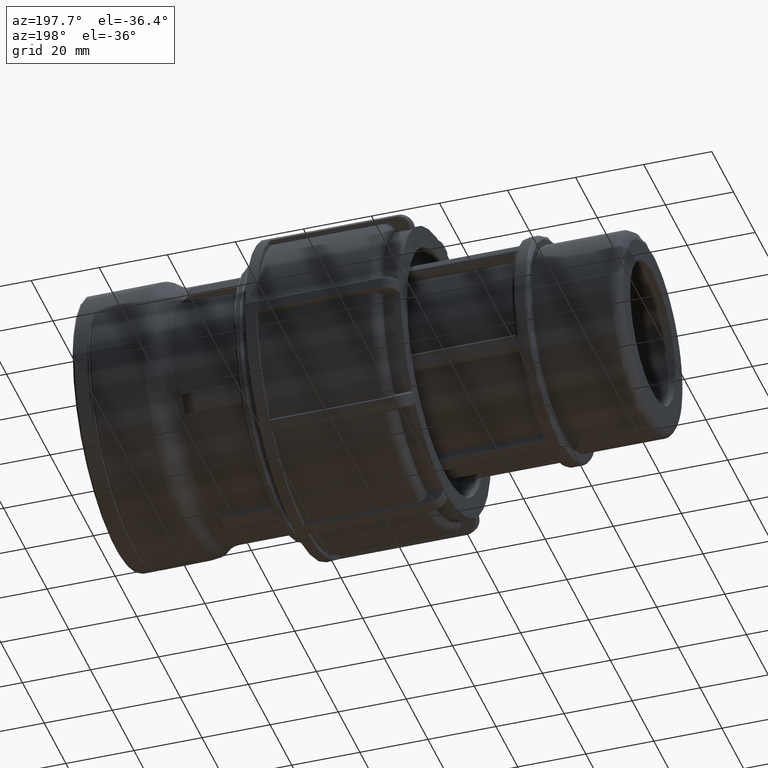
[diagram: clean part render]
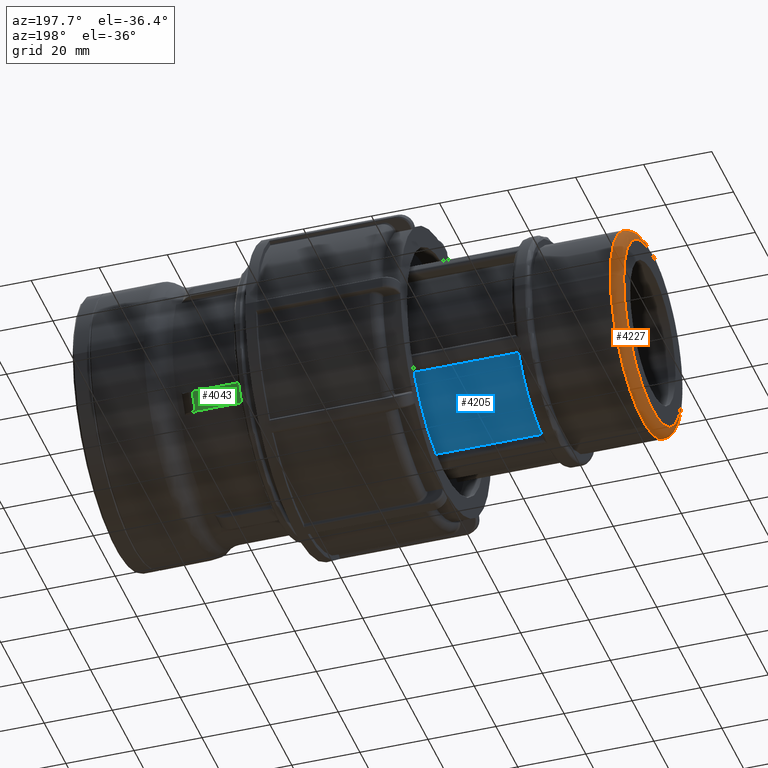
[diagram: same view with three faces highlighted in distinct colors, each labeled with its STEP entity id]
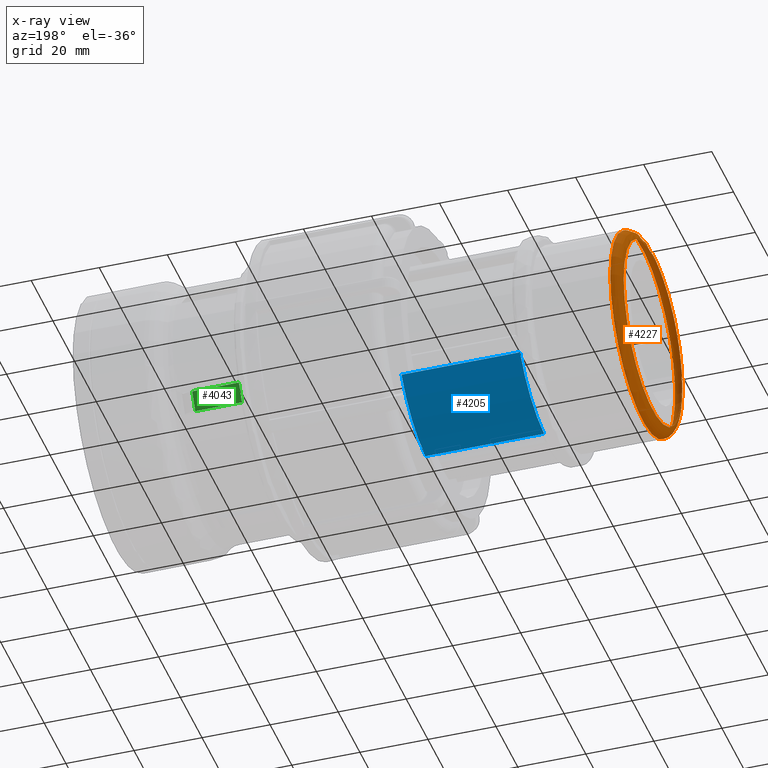
[diagram: x-ray of the same camera — body ghosted, the three highlighted faces saturated]
A machine part, auxiliary view with three faces highlighted in distinct colors.
The next image is the same camera in x-ray (body ghosted, the three faces saturated) — at least one of them is partly hidden behind the body in this view.
Their STEP definitions:

[orange] entity #4227 — the highlighted toroidal blend (fillet) surface has major radius 26.8263 mm and minor (blend) radius 2.9807 mm.
#70=FACE_BOUND('',#1248,.T.);
#984=FACE_OUTER_BOUND('',#1247,.T.);
#1247=EDGE_LOOP('',(#3940));
#1248=EDGE_LOOP('',(#3941));
#1645=CIRCLE('',#4666,26.8263);
#1646=CIRCLE('',#4667,29.807);
#2064=VERTEX_POINT('',#8916);
#2065=VERTEX_POINT('',#8918);
#2695=EDGE_CURVE('',#2064,#2064,#1645,.T.);
#2696=EDGE_CURVE('',#2065,#2065,#1646,.T.);
#3940=ORIENTED_EDGE('',*,*,#2695,.T.);
#3941=ORIENTED_EDGE('',*,*,#2696,.T.);
#3994=TOROIDAL_SURFACE('',#4665,26.8263,2.9807);
#4227=ADVANCED_FACE('',(#984,#70),#3994,.T.);
#4665=AXIS2_PLACEMENT_3D('',#8915,#5782,#5783);
#4666=AXIS2_PLACEMENT_3D('',#8917,#5784,#5785);
#4667=AXIS2_PLACEMENT_3D('',#8919,#5786,#5787);
#5782=DIRECTION('center_axis',(1.,0.,0.));
#5783=DIRECTION('ref_axis',(0.,0.,-1.));
#5784=DIRECTION('center_axis',(1.,0.,0.));
#5785=DIRECTION('ref_axis',(0.,-1.,1.83697019872103E-16));
#5786=DIRECTION('center_axis',(-1.,0.,0.));
#5787=DIRECTION('ref_axis',(0.,-1.,1.83697019872103E-16));
#8915=CARTESIAN_POINT('Origin',(-155.0193,0.,0.));
#8916=CARTESIAN_POINT('',(-158.,26.8263,-1.64263712139833E-15));
#8917=CARTESIAN_POINT('Origin',(-158.,0.,0.));
#8918=CARTESIAN_POINT('',(-155.0193,29.807,-9.12576178554629E-15));
#8919=CARTESIAN_POINT('Origin',(-155.0193,0.,0.));

[blue] entity #4205 — the highlighted cylindrical surface (partial cylindrical patch) has radius 29.807 mm, axis along (1, 0, 0).
#178=LINE('',#6092,#425);
#383=LINE('',#8848,#630);
#425=VECTOR('',#4799,34.83);
#630=VECTOR('',#5676,34.83);
#739=CYLINDRICAL_SURFACE('',#4635,29.807);
#962=FACE_OUTER_BOUND('',#1223,.T.);
#1223=EDGE_LOOP('',(#3848,#3849,#3850,#3851));
#1632=CIRCLE('',#4626,29.807);
#1637=CIRCLE('',#4636,29.807);
#1707=VERTEX_POINT('',#6089);
#1708=VERTEX_POINT('',#6091);
#2054=VERTEX_POINT('',#8845);
#2055=VERTEX_POINT('',#8847);
#2141=EDGE_CURVE('',#1708,#1707,#178,.T.);
#2665=EDGE_CURVE('',#2055,#2054,#383,.T.);
#2679=EDGE_CURVE('',#2055,#1707,#1632,.T.);
#2685=EDGE_CURVE('',#2054,#1708,#1637,.T.);
#3848=ORIENTED_EDGE('',*,*,#2141,.T.);
#3849=ORIENTED_EDGE('',*,*,#2679,.F.);
#3850=ORIENTED_EDGE('',*,*,#2665,.T.);
#3851=ORIENTED_EDGE('',*,*,#2685,.T.);
#4205=ADVANCED_FACE('',(#962),#739,.T.);
#4626=AXIS2_PLACEMENT_3D('',#8871,#5701,#5702);
#4635=AXIS2_PLACEMENT_3D('',#8882,#5720,#5721);
#4636=AXIS2_PLACEMENT_3D('',#8883,#5722,#5723);
#4799=DIRECTION('',(1.,0.,0.));
#5676=DIRECTION('',(-1.,0.,0.));
#5701=DIRECTION('center_axis',(1.,0.,0.));
#5702=DIRECTION('ref_axis',(0.,0.,-1.));
#5720=DIRECTION('center_axis',(1.,0.,0.));
#5721=DIRECTION('ref_axis',(0.,1.,0.));
#5722=DIRECTION('center_axis',(1.,0.,0.));
#5723=DIRECTION('ref_axis',(0.,0.,-1.));
#6089=CARTESIAN_POINT('',(-91.97,24.5386030387688,-16.9208217857682));
#6091=CARTESIAN_POINT('',(-126.8,24.5386030387688,-16.9208217857682));
#6092=CARTESIAN_POINT('',(-109.385,24.5386030387688,-16.9208217857682));
#8845=CARTESIAN_POINT('',(-126.8,2.38456,-29.7114644978399));
#8847=CARTESIAN_POINT('',(-91.97,2.38456,-29.7114644978399));
#8848=CARTESIAN_POINT('',(-109.385,2.38456,-29.7114644978399));
#8871=CARTESIAN_POINT('Origin',(-91.97,0.,0.));
#8882=CARTESIAN_POINT('Origin',(-109.385,0.,0.));
#8883=CARTESIAN_POINT('Origin',(-126.8,0.,0.));

[green] entity #4043 — the highlighted planar face has unit normal (0, 0.866, -0.5).
#95=PLANE('',#4348);
#196=LINE('',#6248,#443);
#238=LINE('',#6568,#485);
#239=LINE('',#6572,#486);
#240=LINE('',#6573,#487);
#443=VECTOR('',#4871,5.6656);
#485=VECTOR('',#4989,13.75886);
#486=VECTOR('',#4994,13.75886);
#487=VECTOR('',#4995,5.6656);
#800=FACE_OUTER_BOUND('',#1048,.T.);
#1048=EDGE_LOOP('',(#3000,#3001,#3002,#3003));
#1736=VERTEX_POINT('',#6245);
#1737=VERTEX_POINT('',#6247);
#1805=VERTEX_POINT('',#6567);
#1806=VERTEX_POINT('',#6571);
#2181=EDGE_CURVE('',#1736,#1737,#196,.T.);
#2270=EDGE_CURVE('',#1737,#1805,#238,.T.);
#2272=EDGE_CURVE('',#1806,#1736,#239,.T.);
#2273=EDGE_CURVE('',#1805,#1806,#240,.T.);
#3000=ORIENTED_EDGE('',*,*,#2181,.F.);
#3001=ORIENTED_EDGE('',*,*,#2272,.F.);
#3002=ORIENTED_EDGE('',*,*,#2273,.F.);
#3003=ORIENTED_EDGE('',*,*,#2270,.F.);
#4043=ADVANCED_FACE('',(#800),#95,.T.);
#4348=AXIS2_PLACEMENT_3D('',#6570,#4992,#4993);
#4871=DIRECTION('',(0.,-0.5,-0.866025403784438));
#4989=DIRECTION('',(1.,0.,0.));
#4992=DIRECTION('center_axis',(0.,0.866025403784438,-0.5));
#4993=DIRECTION('ref_axis',(1.,0.,0.));
#4994=DIRECTION('',(-1.,0.,0.));
#4995=DIRECTION('',(0.,0.5,0.866025403784438));
#6245=CARTESIAN_POINT('',(-47.4,34.5356363118475,-16.6681232361595));
#6247=CARTESIAN_POINT('',(-47.4,31.7028363118475,-21.5746767638406));
#6248=CARTESIAN_POINT('',(-47.4,37.7225363118475,-11.1482505175182));
#6567=CARTESIAN_POINT('',(-33.64114,31.7028363118475,-21.5746767638406));
#6568=CARTESIAN_POINT('',(-47.99614,31.7028363118475,-21.5746767638406));
#6570=CARTESIAN_POINT('Origin',(-47.99614,33.1192363118475,-19.1214));
#6571=CARTESIAN_POINT('',(-33.64114,34.5356363118475,-16.6681232361595));
#6572=CARTESIAN_POINT('',(-47.99614,34.5356363118475,-16.6681232361595));
#6573=CARTESIAN_POINT('',(-33.64114,33.1192363118475,-19.1214));